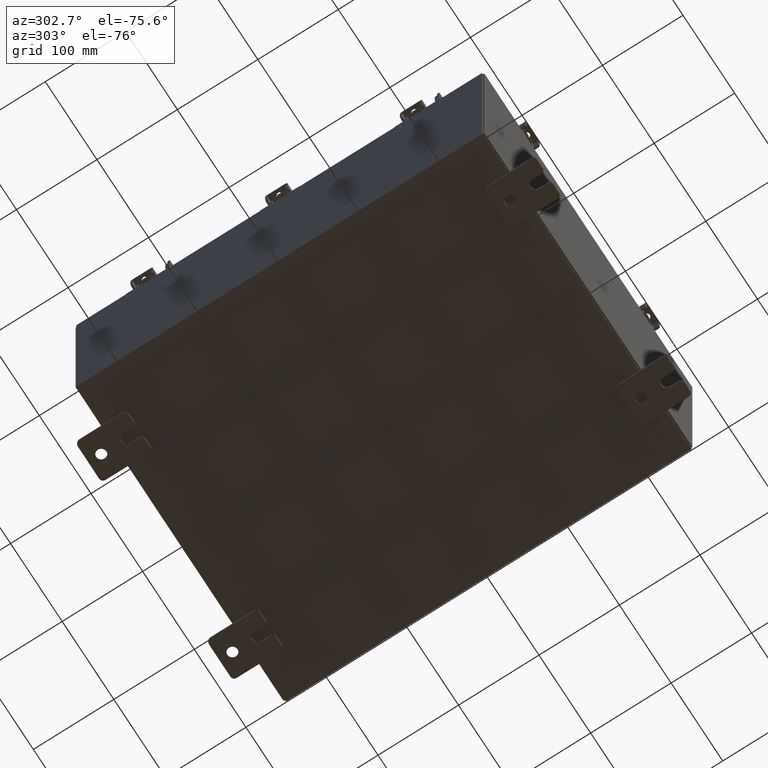
[diagram: clean part render]
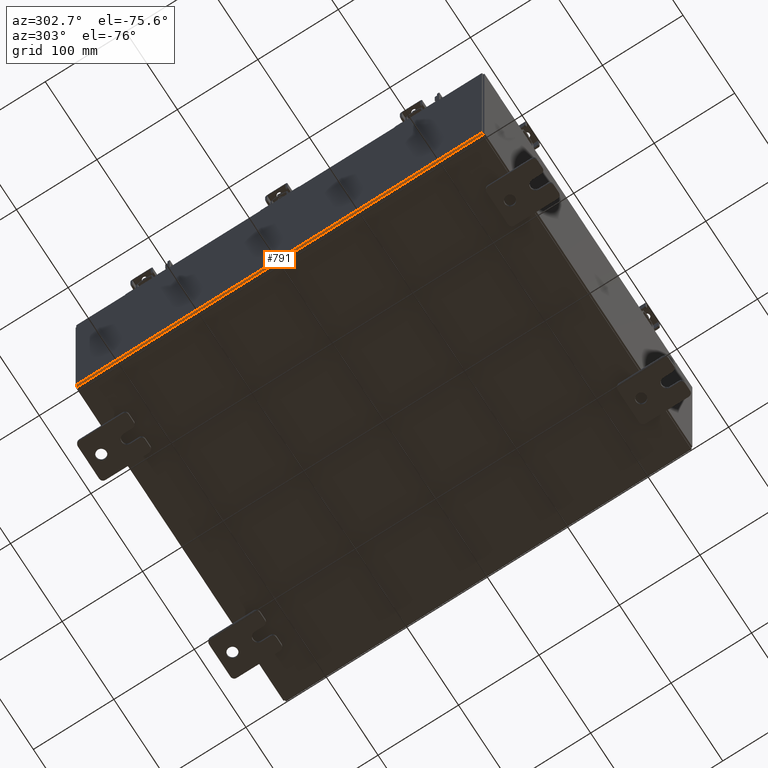
[diagram: same view with one face highlighted and labeled with its STEP entity id]
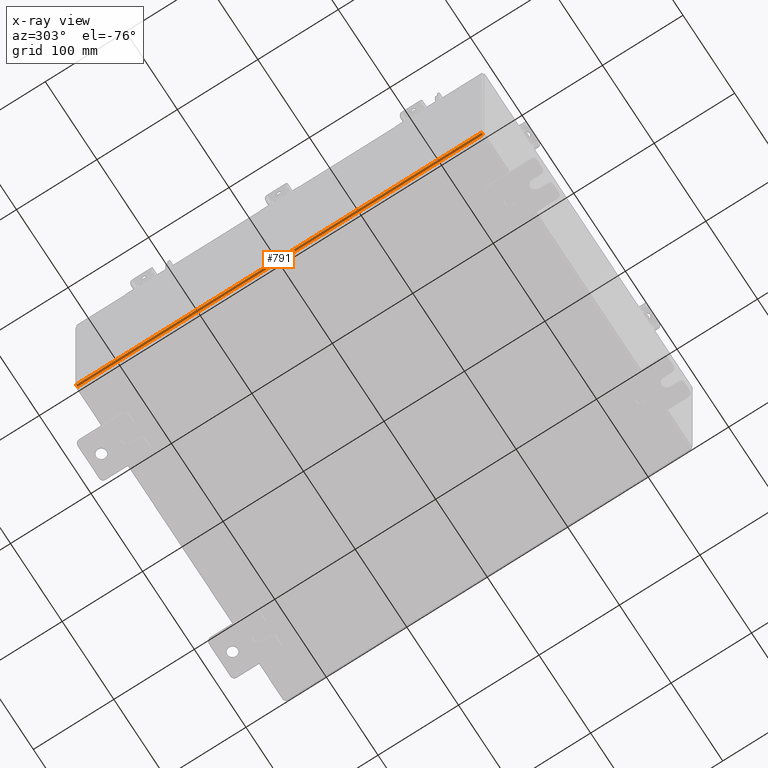
[diagram: x-ray of the same camera — body ghosted, the highlighted face saturated]
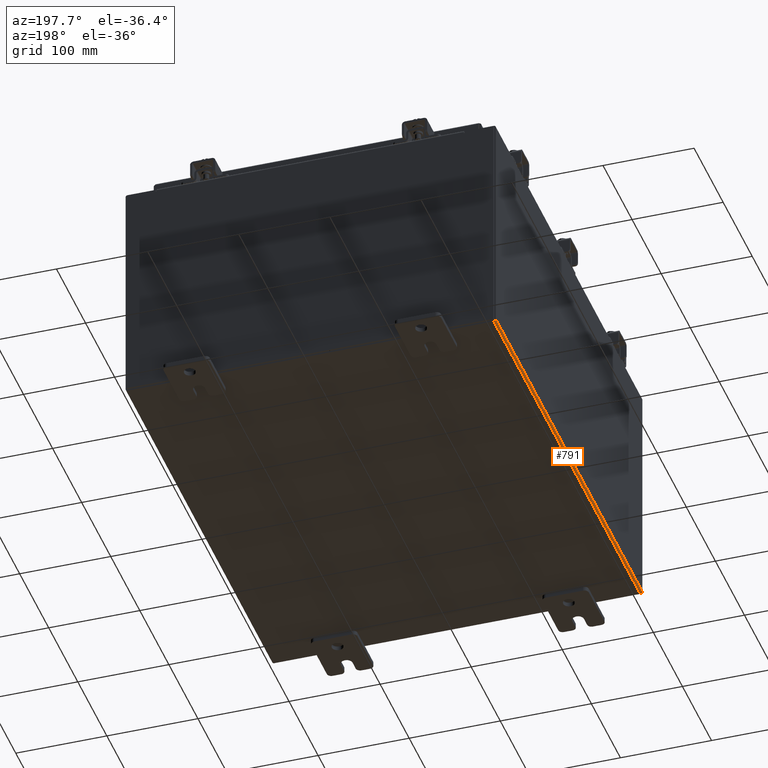
[diagram: same view with one face highlighted and labeled with its STEP entity id]
A machine part, auxiliary view. The second image highlights one B-rep face of the part: STEP entity #791.
The next image is the same camera in x-ray: the body ghosted, the highlighted face saturated — about 0% of this face is hidden behind the body in this view.
A second angle (auxiliary view) of the same face is appended — the face is thin or edge-on in the first view.
In plain terms, the highlighted cylindrical surface (edge-blend (fillet) strip) has radius 2.2276 mm, axis along (0, -1, 0).
Its self-contained STEP definition (entity closure, byte-faithful):
#791 = ADVANCED_FACE ( 'NONE', ( #971 ), #14299, .T. ) ;
#971 = FACE_OUTER_BOUND ( 'NONE', #7207, .T. ) ;
#1259 = CARTESIAN_POINT ( 'NONE',  ( -7.912299999999997400, -9.925300000000000000, 0.01300000000000015200 ) ) ;
#3001 = DIRECTION ( 'NONE',  ( 0.0000000000000000000, 0.0000000000000000000, -1.000000000000000000 ) ) ;
#3115 = CIRCLE ( 'NONE', #10304, 0.08770000000000009700 ) ;
#3670 = CARTESIAN_POINT ( 'NONE',  ( -7.912299999999997400, 9.925299999999998200, -0.07470000000000000300 ) ) ;
#3949 = ORIENTED_EDGE ( 'NONE', *, *, #6406, .F. ) ;
#4720 = CARTESIAN_POINT ( 'NONE',  ( -7.912299999999997400, -9.925300000000000000, -0.07469999999999994700 ) ) ;
#4994 = DIRECTION ( 'NONE',  ( -0.0000000000000000000, 1.000000000000000000, -0.0000000000000000000 ) ) ;
#5967 = ORIENTED_EDGE ( 'NONE', *, *, #14271, .F. ) ;
#6234 = EDGE_CURVE ( 'NONE', #14977, #12192, #16715, .T. ) ;
#6406 = EDGE_CURVE ( 'NONE', #12192, #6951, #7111, .T. ) ;
#6951 = VERTEX_POINT ( 'NONE', #18634 ) ;
#7111 = CIRCLE ( 'NONE', #17161, 0.08770000000000009700 ) ;
#7207 = EDGE_LOOP ( 'NONE', ( #16446, #5967, #8472, #3949 ) ) ;
#8472 = ORIENTED_EDGE ( 'NONE', *, *, #9488, .T. ) ;
#9488 = EDGE_CURVE ( 'NONE', #18554, #6951, #14485, .T. ) ;
#9866 = VECTOR ( 'NONE', #20002, 39.37007874015748100 ) ;
#10304 = AXIS2_PLACEMENT_3D ( 'NONE', #1259, #13449, #3001 ) ;
#12192 = VERTEX_POINT ( 'NONE', #3670 ) ;
#13009 = CARTESIAN_POINT ( 'NONE',  ( -7.999999999999997300, 9.925299999999998200, 0.01299999999999984700 ) ) ;
#13190 = DIRECTION ( 'NONE',  ( -0.0000000000000000000, 1.000000000000000000, -0.0000000000000000000 ) ) ;
#13449 = DIRECTION ( 'NONE',  ( 0.0000000000000000000, -1.000000000000000000, 0.0000000000000000000 ) ) ;
#13872 = CARTESIAN_POINT ( 'NONE',  ( -7.912299999999997400, -9.925300000000001800, 0.01300000000000015200 ) ) ;
#14271 = EDGE_CURVE ( 'NONE', #18554, #14977, #3115, .T. ) ;
#14299 = CYLINDRICAL_SURFACE ( 'NONE', #14935, 0.08770000000000026400 ) ;
#14485 = LINE ( 'NONE', #13009, #9866 ) ;
#14935 = AXIS2_PLACEMENT_3D ( 'NONE', #13872, #15541, #17297 ) ;
#14977 = VERTEX_POINT ( 'NONE', #4720 ) ;
#15046 = VECTOR ( 'NONE', #13190, 39.37007874015748100 ) ;
#15425 = CARTESIAN_POINT ( 'NONE',  ( -7.912299999999997400, 9.925299999999998200, 0.01300000000000015200 ) ) ;
#15541 = DIRECTION ( 'NONE',  ( 0.0000000000000000000, -1.000000000000000000, 0.0000000000000000000 ) ) ;
#16446 = ORIENTED_EDGE ( 'NONE', *, *, #6234, .F. ) ;
#16715 = LINE ( 'NONE', #20099, #15046 ) ;
#17161 = AXIS2_PLACEMENT_3D ( 'NONE', #15425, #4994, #17185 ) ;
#17185 = DIRECTION ( 'NONE',  ( 0.0000000000000000000, 0.0000000000000000000, -1.000000000000000000 ) ) ;
#17297 = DIRECTION ( 'NONE',  ( -1.000000000000000000, 0.0000000000000000000, -3.528701887483225300E-015 ) ) ;
#17926 = CARTESIAN_POINT ( 'NONE',  ( -7.999999999999997300, -9.925300000000000000, 0.01299999999999984700 ) ) ;
#18554 = VERTEX_POINT ( 'NONE', #17926 ) ;
#18634 = CARTESIAN_POINT ( 'NONE',  ( -7.999999999999997300, 9.925299999999998200, 0.01299999999999984300 ) ) ;
#20002 = DIRECTION ( 'NONE',  ( -0.0000000000000000000, 1.000000000000000000, -0.0000000000000000000 ) ) ;
#20099 = CARTESIAN_POINT ( 'NONE',  ( -7.912299999999997400, -9.925300000000001800, -0.07469999999999994700 ) ) ;